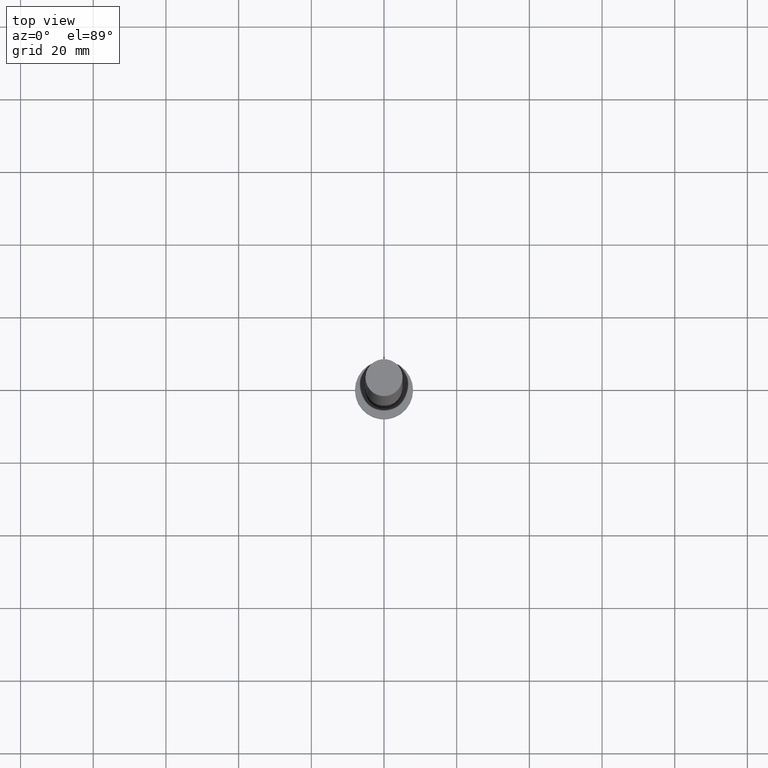
[diagram: clean part render]
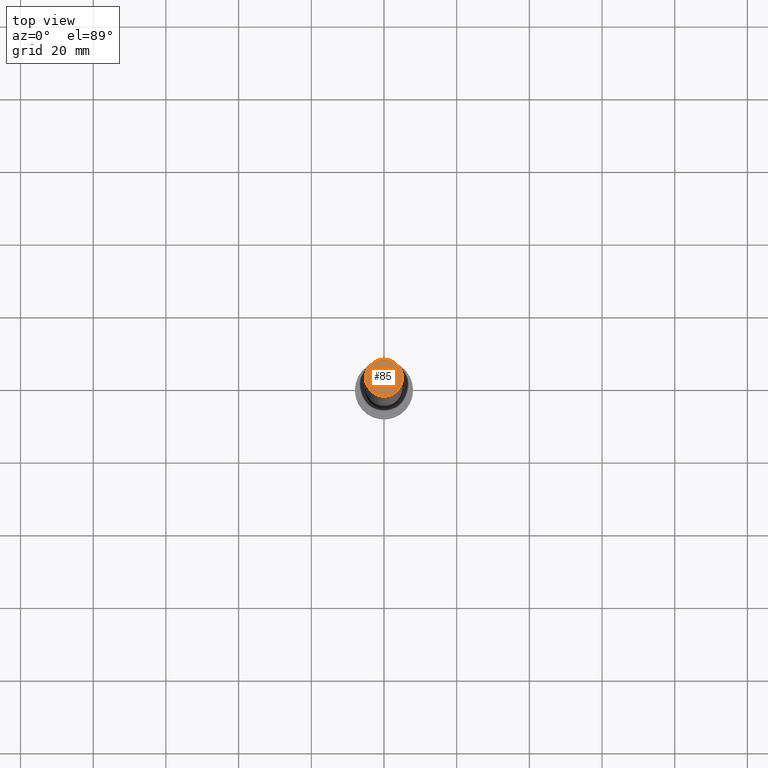
[diagram: same view with one face highlighted and labeled with its STEP entity id]
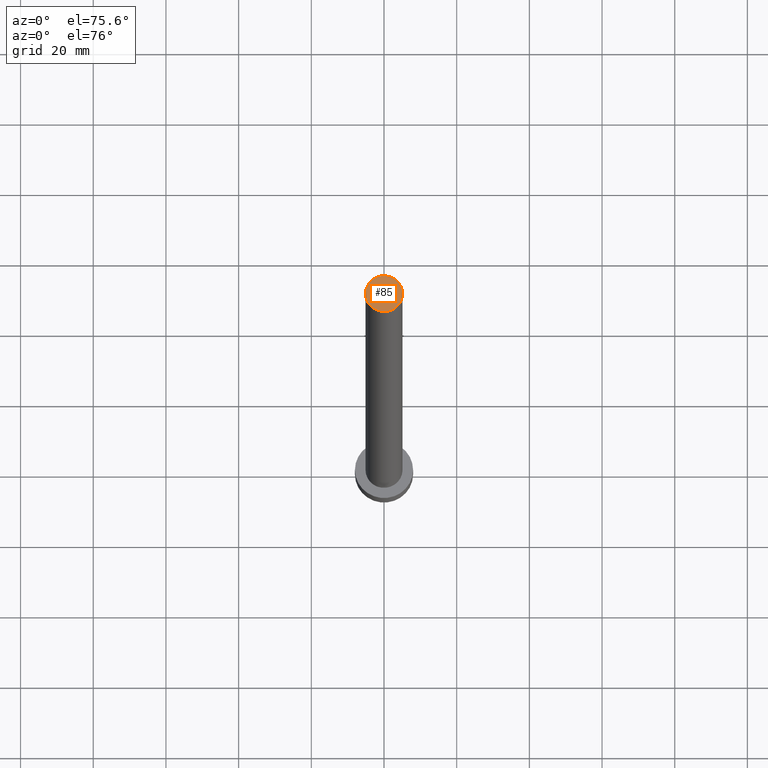
[diagram: same view with one face highlighted and labeled with its STEP entity id]
A machine part, top view. The second image highlights one B-rep face of the part: STEP entity #85.
A second angle (auxiliary view) of the same face is appended — the face is thin or edge-on in the first view.
In plain terms, the highlighted planar face has unit normal (0, 0, 1).
Its self-contained STEP definition (entity closure, byte-faithful):
#4 = CARTESIAN_POINT ( 'NONE',  ( 0.000000000000000000, 0.000000000000000000, 200.0000000000000000 ) ) ;
#7 = DIRECTION ( 'NONE',  ( 1.000000000000000000, 0.000000000000000000, -0.000000000000000000 ) ) ;
#11 = CARTESIAN_POINT ( 'NONE',  ( 0.000000000000000000, 0.000000000000000000, 200.0000000000000000 ) ) ;
#24 = VERTEX_POINT ( 'NONE', #25 ) ;
#25 = CARTESIAN_POINT ( 'NONE',  ( -5.099999999999999645, 0.000000000000000000, 200.0000000000000000 ) ) ;
#46 = EDGE_CURVE ( 'NONE', #24, #125, #135, .T. ) ;
#61 = ORIENTED_EDGE ( 'NONE', *, *, #245, .T. ) ;
#80 = DIRECTION ( 'NONE',  ( 0.000000000000000000, 0.000000000000000000, 1.000000000000000000 ) ) ;
#81 = PLANE ( 'NONE',  #117 ) ;
#85 = ADVANCED_FACE ( 'NONE', ( #140 ), #81, .T. ) ;
#90 = CIRCLE ( 'NONE', #126, 5.099999999999999645 ) ;
#94 = AXIS2_PLACEMENT_3D ( 'NONE', #4, #80, #99 ) ;
#99 = DIRECTION ( 'NONE',  ( 1.000000000000000000, 0.000000000000000000, 0.000000000000000000 ) ) ;
#117 = AXIS2_PLACEMENT_3D ( 'NONE', #238, #142, #7 ) ;
#125 = VERTEX_POINT ( 'NONE', #176 ) ;
#126 = AXIS2_PLACEMENT_3D ( 'NONE', #11, #144, #226 ) ;
#135 = CIRCLE ( 'NONE', #94, 5.099999999999999645 ) ;
#138 = EDGE_LOOP ( 'NONE', ( #214, #61 ) ) ;
#140 = FACE_OUTER_BOUND ( 'NONE', #138, .T. ) ;
#142 = DIRECTION ( 'NONE',  ( 0.000000000000000000, 0.000000000000000000, 1.000000000000000000 ) ) ;
#144 = DIRECTION ( 'NONE',  ( 0.000000000000000000, 0.000000000000000000, 1.000000000000000000 ) ) ;
#176 = CARTESIAN_POINT ( 'NONE',  ( 5.099999999999999645, 6.245698675651500839E-16, 200.0000000000000000 ) ) ;
#214 = ORIENTED_EDGE ( 'NONE', *, *, #46, .T. ) ;
#226 = DIRECTION ( 'NONE',  ( 1.000000000000000000, 0.000000000000000000, 0.000000000000000000 ) ) ;
#238 = CARTESIAN_POINT ( 'NONE',  ( 0.000000000000000000, 0.000000000000000000, 200.0000000000000000 ) ) ;
#245 = EDGE_CURVE ( 'NONE', #125, #24, #90, .T. ) ;